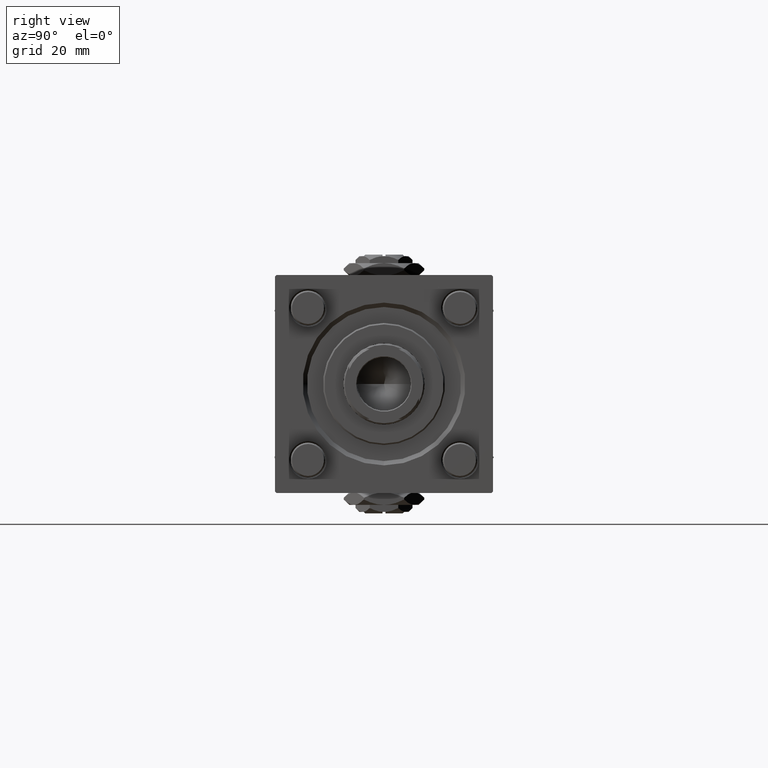
[diagram: clean part render]
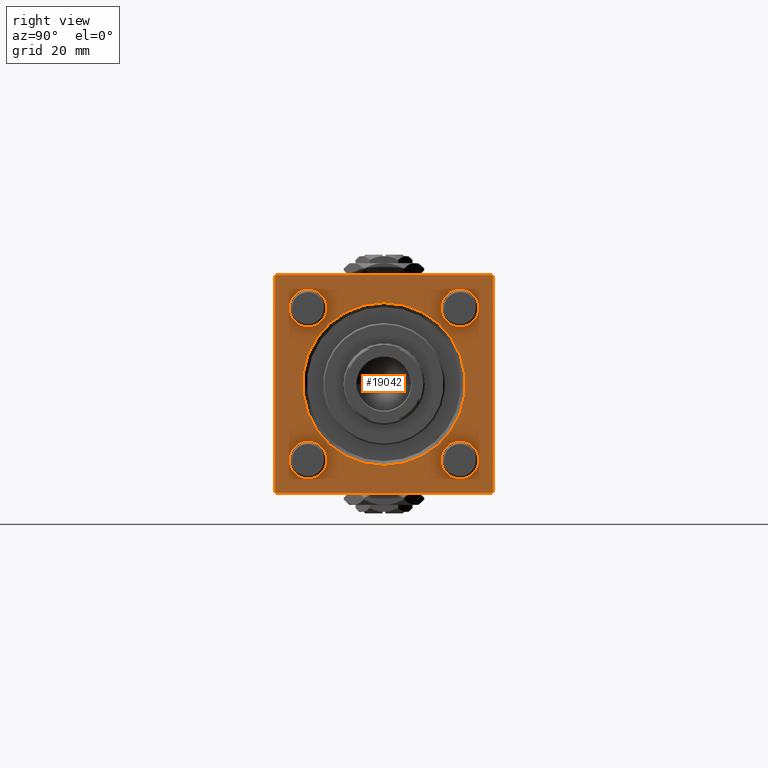
[diagram: same view with one face highlighted and labeled with its STEP entity id]
A machine part, right view. The second image highlights one B-rep face of the part: STEP entity #19042.
In plain terms, the highlighted planar face has unit normal (-1, 0, 0).
Its self-contained STEP definition (entity closure, byte-faithful):
#109 = VERTEX_POINT ( 'NONE', #54438 ) ;
#115 = FACE_BOUND ( 'NONE', #2235, .T. ) ;
#149 = CARTESIAN_POINT ( 'NONE',  ( 161.0000000000000000, 37.00000000000000000, -37.50000000000000000 ) ) ;
#668 = LINE ( 'NONE', #41658, #14007 ) ;
#698 = ORIENTED_EDGE ( 'NONE', *, *, #19760, .F. ) ;
#1100 = DIRECTION ( 'NONE',  ( 0.000000000000000000, 0.000000000000000000, 1.000000000000000000 ) ) ;
#1174 = DIRECTION ( 'NONE',  ( 0.000000000000000000, 0.000000000000000000, 1.000000000000000000 ) ) ;
#1239 = DIRECTION ( 'NONE',  ( -1.000000000000000000, -0.000000000000000000, 0.000000000000000000 ) ) ;
#1698 = CARTESIAN_POINT ( 'NONE',  ( 161.0000000000000000, -37.50000000000000000, 37.49999999999997868 ) ) ;
#2235 = EDGE_LOOP ( 'NONE', ( #36893, #26990 ) ) ;
#2448 = EDGE_LOOP ( 'NONE', ( #4451, #18913, #698, #28259, #38406, #27487, #18738, #21715 ) ) ;
#2692 = CIRCLE ( 'NONE', #23549, 6.500000000000008882 ) ;
#3257 = DIRECTION ( 'NONE',  ( -0.000000000000000000, -0.7071067811865279218, -0.7071067811865671127 ) ) ;
#3362 = EDGE_CURVE ( 'NONE', #44592, #25463, #35573, .T. ) ;
#3804 = DIRECTION ( 'NONE',  ( 0.000000000000000000, 0.000000000000000000, 1.000000000000000000 ) ) ;
#3941 = LINE ( 'NONE', #21746, #42110 ) ;
#3977 = FACE_BOUND ( 'NONE', #24446, .T. ) ;
#4076 = DIRECTION ( 'NONE',  ( 0.000000000000000000, -1.000000000000000000, -1.850371707708594316E-16 ) ) ;
#4320 = DIRECTION ( 'NONE',  ( 0.000000000000000000, 0.000000000000000000, 1.000000000000000000 ) ) ;
#4451 = ORIENTED_EDGE ( 'NONE', *, *, #52257, .T. ) ;
#6474 = AXIS2_PLACEMENT_3D ( 'NONE', #48010, #42414, #56628 ) ;
#6738 = LINE ( 'NONE', #11772, #57177 ) ;
#7629 = DIRECTION ( 'NONE',  ( 0.000000000000000000, 0.000000000000000000, 1.000000000000000000 ) ) ;
#8070 = CARTESIAN_POINT ( 'NONE',  ( 161.0000000000000000, -26.14999999999999147, 32.65000000000001990 ) ) ;
#8433 = VERTEX_POINT ( 'NONE', #8070 ) ;
#9711 = AXIS2_PLACEMENT_3D ( 'NONE', #10309, #15048, #1100 ) ;
#9992 = DIRECTION ( 'NONE',  ( 0.000000000000000000, 0.000000000000000000, 1.000000000000000000 ) ) ;
#10309 = CARTESIAN_POINT ( 'NONE',  ( 161.0000000000000000, -26.14999999999999147, 26.15000000000000924 ) ) ;
#10368 = CARTESIAN_POINT ( 'NONE',  ( 161.0000000000000000, 26.14999999999999858, 26.15000000000000213 ) ) ;
#10392 = CARTESIAN_POINT ( 'NONE',  ( 161.0000000000000000, -26.14999999999999147, -26.15000000000000924 ) ) ;
#11514 = DIRECTION ( 'NONE',  ( 0.000000000000000000, 0.000000000000000000, 1.000000000000000000 ) ) ;
#11572 = VECTOR ( 'NONE', #4076, 1000.000000000000000 ) ;
#11593 = CIRCLE ( 'NONE', #44801, 6.500000000000002665 ) ;
#11772 = CARTESIAN_POINT ( 'NONE',  ( 161.0000000000000000, 37.50000000000000000, 37.49999999999999289 ) ) ;
#11962 = DIRECTION ( 'NONE',  ( 0.000000000000000000, 0.000000000000000000, 1.000000000000000000 ) ) ;
#12572 = CARTESIAN_POINT ( 'NONE',  ( 161.0000000000000000, 37.50000000000000000, -36.99999999999999289 ) ) ;
#12628 = EDGE_CURVE ( 'NONE', #53271, #109, #57452, .T. ) ;
#12884 = CARTESIAN_POINT ( 'NONE',  ( 161.0000000000000000, 0.000000000000000000, 0.000000000000000000 ) ) ;
#12902 = AXIS2_PLACEMENT_3D ( 'NONE', #22414, #26576, #4320 ) ;
#13179 = DIRECTION ( 'NONE',  ( -1.000000000000000000, -0.000000000000000000, 0.000000000000000000 ) ) ;
#13199 = CARTESIAN_POINT ( 'NONE',  ( 161.0000000000000000, 26.14999999999999858, -19.65000000000000213 ) ) ;
#13310 = EDGE_CURVE ( 'NONE', #17365, #33815, #46638, .T. ) ;
#13398 = CARTESIAN_POINT ( 'NONE',  ( 161.0000000000000000, -26.14999999999999147, 19.65000000000000568 ) ) ;
#14007 = VECTOR ( 'NONE', #55608, 1000.000000000000114 ) ;
#14832 = CIRCLE ( 'NONE', #12902, 28.00000000000002487 ) ;
#15048 = DIRECTION ( 'NONE',  ( -1.000000000000000000, -0.000000000000000000, 0.000000000000000000 ) ) ;
#15919 = CARTESIAN_POINT ( 'NONE',  ( 161.0000000000000000, 37.50000000000000000, 36.99999999999999289 ) ) ;
#15941 = LINE ( 'NONE', #48592, #45831 ) ;
#16312 = LINE ( 'NONE', #29991, #31570 ) ;
#16412 = ORIENTED_EDGE ( 'NONE', *, *, #32583, .T. ) ;
#16717 = LINE ( 'NONE', #1698, #23131 ) ;
#17365 = VERTEX_POINT ( 'NONE', #39155 ) ;
#17638 = EDGE_CURVE ( 'NONE', #41840, #34395, #15941, .T. ) ;
#17702 = EDGE_CURVE ( 'NONE', #55435, #109, #6738, .T. ) ;
#18220 = VERTEX_POINT ( 'NONE', #58175 ) ;
#18225 = PLANE ( 'NONE',  #38262 ) ;
#18738 = ORIENTED_EDGE ( 'NONE', *, *, #3362, .T. ) ;
#18913 = ORIENTED_EDGE ( 'NONE', *, *, #17638, .T. ) ;
#19042 = ADVANCED_FACE ( 'NONE', ( #3977, #115, #27141, #45276, #22677, #53582 ), #18225, .F. ) ;
#19279 = DIRECTION ( 'NONE',  ( -1.000000000000000000, -0.000000000000000000, 0.000000000000000000 ) ) ;
#19760 = EDGE_CURVE ( 'NONE', #53271, #34395, #3941, .T. ) ;
#19796 = VERTEX_POINT ( 'NONE', #57420 ) ;
#20545 = EDGE_LOOP ( 'NONE', ( #49657, #31158 ) ) ;
#20830 = CARTESIAN_POINT ( 'NONE',  ( 161.0000000000000000, 26.14999999999999858, -32.65000000000000568 ) ) ;
#20952 = VECTOR ( 'NONE', #21482, 999.9999999999998863 ) ;
#21482 = DIRECTION ( 'NONE',  ( -0.000000000000000000, 0.7071067811865425767, 0.7071067811865525687 ) ) ;
#21715 = ORIENTED_EDGE ( 'NONE', *, *, #48777, .T. ) ;
#21746 = CARTESIAN_POINT ( 'NONE',  ( 161.0000000000000000, 37.50000000000000000, -37.50000000000000000 ) ) ;
#22195 = CARTESIAN_POINT ( 'NONE',  ( 161.0000000000000000, -26.14999999999999147, 26.15000000000000924 ) ) ;
#22414 = CARTESIAN_POINT ( 'NONE',  ( 161.0000000000000000, 0.000000000000000000, 0.000000000000000000 ) ) ;
#22677 = FACE_BOUND ( 'NONE', #20545, .T. ) ;
#22989 = CIRCLE ( 'NONE', #9711, 6.500000000000008882 ) ;
#23131 = VECTOR ( 'NONE', #52951, 1000.000000000000000 ) ;
#23214 = CIRCLE ( 'NONE', #50742, 28.00000000000002487 ) ;
#23549 = AXIS2_PLACEMENT_3D ( 'NONE', #22195, #35876, #3804 ) ;
#23849 = EDGE_LOOP ( 'NONE', ( #57294, #54720 ) ) ;
#24446 = EDGE_LOOP ( 'NONE', ( #34869, #16412 ) ) ;
#25454 = CARTESIAN_POINT ( 'NONE',  ( 161.0000000000000000, -37.00000000000002842, 37.49999999999997868 ) ) ;
#25463 = VERTEX_POINT ( 'NONE', #25454 ) ;
#25584 = VERTEX_POINT ( 'NONE', #33749 ) ;
#25716 = DIRECTION ( 'NONE',  ( 0.000000000000000000, 0.7071067811865474617, -0.7071067811865474617 ) ) ;
#26200 = CARTESIAN_POINT ( 'NONE',  ( 161.0000000000000000, -37.50000000000000000, 36.99999999999997868 ) ) ;
#26212 = EDGE_CURVE ( 'NONE', #18220, #52872, #23214, .T. ) ;
#26576 = DIRECTION ( 'NONE',  ( -1.000000000000000000, -0.000000000000000000, 0.000000000000000000 ) ) ;
#26678 = AXIS2_PLACEMENT_3D ( 'NONE', #34375, #48326, #7629 ) ;
#26737 = VERTEX_POINT ( 'NONE', #13199 ) ;
#26990 = ORIENTED_EDGE ( 'NONE', *, *, #47166, .T. ) ;
#27141 = FACE_BOUND ( 'NONE', #52142, .T. ) ;
#27235 = CARTESIAN_POINT ( 'NONE',  ( 161.0000000000000000, 37.50000000000000000, 37.49999999999999289 ) ) ;
#27392 = CIRCLE ( 'NONE', #34986, 6.500000000000002665 ) ;
#27487 = ORIENTED_EDGE ( 'NONE', *, *, #35779, .T. ) ;
#27793 = CARTESIAN_POINT ( 'NONE',  ( 161.0000000000000000, -26.14999999999999147, -26.15000000000000924 ) ) ;
#28259 = ORIENTED_EDGE ( 'NONE', *, *, #12628, .T. ) ;
#28269 = CARTESIAN_POINT ( 'NONE',  ( 161.0000000000000000, 0.000000000000000000, 0.000000000000000000 ) ) ;
#29991 = CARTESIAN_POINT ( 'NONE',  ( 161.0000000000000000, -37.50000000000000000, 36.99999999999997868 ) ) ;
#30032 = AXIS2_PLACEMENT_3D ( 'NONE', #10392, #19279, #1174 ) ;
#31158 = ORIENTED_EDGE ( 'NONE', *, *, #26212, .T. ) ;
#31222 = CARTESIAN_POINT ( 'NONE',  ( 161.0000000000000000, -37.50000000000000711, -36.99999999999997868 ) ) ;
#31570 = VECTOR ( 'NONE', #3257, 1000.000000000000000 ) ;
#32583 = EDGE_CURVE ( 'NONE', #25584, #19796, #41431, .T. ) ;
#33749 = CARTESIAN_POINT ( 'NONE',  ( 161.0000000000000000, -26.14999999999999147, -19.65000000000000924 ) ) ;
#33815 = VERTEX_POINT ( 'NONE', #54662 ) ;
#34375 = CARTESIAN_POINT ( 'NONE',  ( 161.0000000000000000, 26.14999999999999858, 26.15000000000000213 ) ) ;
#34395 = VERTEX_POINT ( 'NONE', #34863 ) ;
#34863 = CARTESIAN_POINT ( 'NONE',  ( 161.0000000000000000, -36.99999999999998579, -37.50000000000000000 ) ) ;
#34869 = ORIENTED_EDGE ( 'NONE', *, *, #48472, .T. ) ;
#34956 = CIRCLE ( 'NONE', #6474, 6.500000000000002665 ) ;
#34986 = AXIS2_PLACEMENT_3D ( 'NONE', #10368, #42446, #11514 ) ;
#35547 = VERTEX_POINT ( 'NONE', #20830 ) ;
#35573 = LINE ( 'NONE', #27235, #11572 ) ;
#35779 = EDGE_CURVE ( 'NONE', #55435, #44592, #668, .T. ) ;
#35876 = DIRECTION ( 'NONE',  ( -1.000000000000000000, -0.000000000000000000, 0.000000000000000000 ) ) ;
#36003 = CARTESIAN_POINT ( 'NONE',  ( 161.0000000000000000, 26.14999999999999858, -26.15000000000000213 ) ) ;
#36893 = ORIENTED_EDGE ( 'NONE', *, *, #37297, .T. ) ;
#37059 = EDGE_CURVE ( 'NONE', #8433, #44064, #2692, .T. ) ;
#37297 = EDGE_CURVE ( 'NONE', #35547, #26737, #34956, .T. ) ;
#38262 = AXIS2_PLACEMENT_3D ( 'NONE', #12884, #13179, #49133 ) ;
#38406 = ORIENTED_EDGE ( 'NONE', *, *, #17702, .F. ) ;
#39155 = CARTESIAN_POINT ( 'NONE',  ( 161.0000000000000000, 26.14999999999999858, 19.64999999999999858 ) ) ;
#40241 = ORIENTED_EDGE ( 'NONE', *, *, #13310, .T. ) ;
#41431 = CIRCLE ( 'NONE', #30032, 6.500000000000002665 ) ;
#41658 = CARTESIAN_POINT ( 'NONE',  ( 161.0000000000000000, 37.00000000000000000, 37.49999999999999289 ) ) ;
#41840 = VERTEX_POINT ( 'NONE', #31222 ) ;
#42110 = VECTOR ( 'NONE', #48796, 1000.000000000000000 ) ;
#42365 = DIRECTION ( 'NONE',  ( -1.000000000000000000, -0.000000000000000000, 0.000000000000000000 ) ) ;
#42414 = DIRECTION ( 'NONE',  ( -1.000000000000000000, -0.000000000000000000, 0.000000000000000000 ) ) ;
#42446 = DIRECTION ( 'NONE',  ( -1.000000000000000000, -0.000000000000000000, 0.000000000000000000 ) ) ;
#43030 = AXIS2_PLACEMENT_3D ( 'NONE', #36003, #49368, #11962 ) ;
#43575 = DIRECTION ( 'NONE',  ( 0.000000000000000000, 0.000000000000000000, -1.000000000000000000 ) ) ;
#44064 = VERTEX_POINT ( 'NONE', #13398 ) ;
#44241 = EDGE_CURVE ( 'NONE', #33815, #17365, #27392, .T. ) ;
#44592 = VERTEX_POINT ( 'NONE', #50392 ) ;
#44801 = AXIS2_PLACEMENT_3D ( 'NONE', #27793, #42365, #9992 ) ;
#45276 = FACE_BOUND ( 'NONE', #23849, .T. ) ;
#45831 = VECTOR ( 'NONE', #25716, 1000.000000000000114 ) ;
#46399 = DIRECTION ( 'NONE',  ( 0.000000000000000000, 0.000000000000000000, 1.000000000000000000 ) ) ;
#46638 = CIRCLE ( 'NONE', #26678, 6.500000000000002665 ) ;
#47166 = EDGE_CURVE ( 'NONE', #26737, #35547, #48700, .T. ) ;
#47984 = EDGE_CURVE ( 'NONE', #44064, #8433, #22989, .T. ) ;
#48010 = CARTESIAN_POINT ( 'NONE',  ( 161.0000000000000000, 26.14999999999999858, -26.15000000000000213 ) ) ;
#48326 = DIRECTION ( 'NONE',  ( -1.000000000000000000, -0.000000000000000000, 0.000000000000000000 ) ) ;
#48472 = EDGE_CURVE ( 'NONE', #19796, #25584, #11593, .T. ) ;
#48592 = CARTESIAN_POINT ( 'NONE',  ( 161.0000000000000000, -36.99999999999998579, -37.50000000000000000 ) ) ;
#48700 = CIRCLE ( 'NONE', #43030, 6.500000000000002665 ) ;
#48777 = EDGE_CURVE ( 'NONE', #25463, #51330, #16312, .T. ) ;
#48796 = DIRECTION ( 'NONE',  ( 0.000000000000000000, -1.000000000000000000, 0.000000000000000000 ) ) ;
#49133 = DIRECTION ( 'NONE',  ( 0.000000000000000000, 0.000000000000000000, 1.000000000000000000 ) ) ;
#49368 = DIRECTION ( 'NONE',  ( -1.000000000000000000, -0.000000000000000000, 0.000000000000000000 ) ) ;
#49657 = ORIENTED_EDGE ( 'NONE', *, *, #58724, .T. ) ;
#50392 = CARTESIAN_POINT ( 'NONE',  ( 161.0000000000000000, 37.00000000000000000, 37.49999999999999289 ) ) ;
#50742 = AXIS2_PLACEMENT_3D ( 'NONE', #28269, #1239, #46399 ) ;
#51330 = VERTEX_POINT ( 'NONE', #26200 ) ;
#52142 = EDGE_LOOP ( 'NONE', ( #40241, #58679 ) ) ;
#52257 = EDGE_CURVE ( 'NONE', #51330, #41840, #16717, .T. ) ;
#52872 = VERTEX_POINT ( 'NONE', #58741 ) ;
#52951 = DIRECTION ( 'NONE',  ( 0.000000000000000000, -9.251858538542972814E-17, -1.000000000000000000 ) ) ;
#53271 = VERTEX_POINT ( 'NONE', #149 ) ;
#53582 = FACE_OUTER_BOUND ( 'NONE', #2448, .T. ) ;
#54438 = CARTESIAN_POINT ( 'NONE',  ( 161.0000000000000000, 37.50000000000000000, -36.99999999999999289 ) ) ;
#54662 = CARTESIAN_POINT ( 'NONE',  ( 161.0000000000000000, 26.14999999999999858, 32.65000000000001279 ) ) ;
#54720 = ORIENTED_EDGE ( 'NONE', *, *, #37059, .T. ) ;
#55435 = VERTEX_POINT ( 'NONE', #15919 ) ;
#55608 = DIRECTION ( 'NONE',  ( 0.000000000000000000, -0.7071067811865474617, 0.7071067811865474617 ) ) ;
#56628 = DIRECTION ( 'NONE',  ( 0.000000000000000000, 0.000000000000000000, 1.000000000000000000 ) ) ;
#57177 = VECTOR ( 'NONE', #43575, 1000.000000000000000 ) ;
#57294 = ORIENTED_EDGE ( 'NONE', *, *, #47984, .T. ) ;
#57420 = CARTESIAN_POINT ( 'NONE',  ( 161.0000000000000000, -26.14999999999999147, -32.65000000000001279 ) ) ;
#57452 = LINE ( 'NONE', #12572, #20952 ) ;
#58175 = CARTESIAN_POINT ( 'NONE',  ( 161.0000000000000000, 3.429011037612592037E-15, 28.00000000000002487 ) ) ;
#58679 = ORIENTED_EDGE ( 'NONE', *, *, #44241, .T. ) ;
#58724 = EDGE_CURVE ( 'NONE', #52872, #18220, #14832, .T. ) ;
#58741 = CARTESIAN_POINT ( 'NONE',  ( 161.0000000000000000, 0.000000000000000000, -28.00000000000002487 ) ) ;